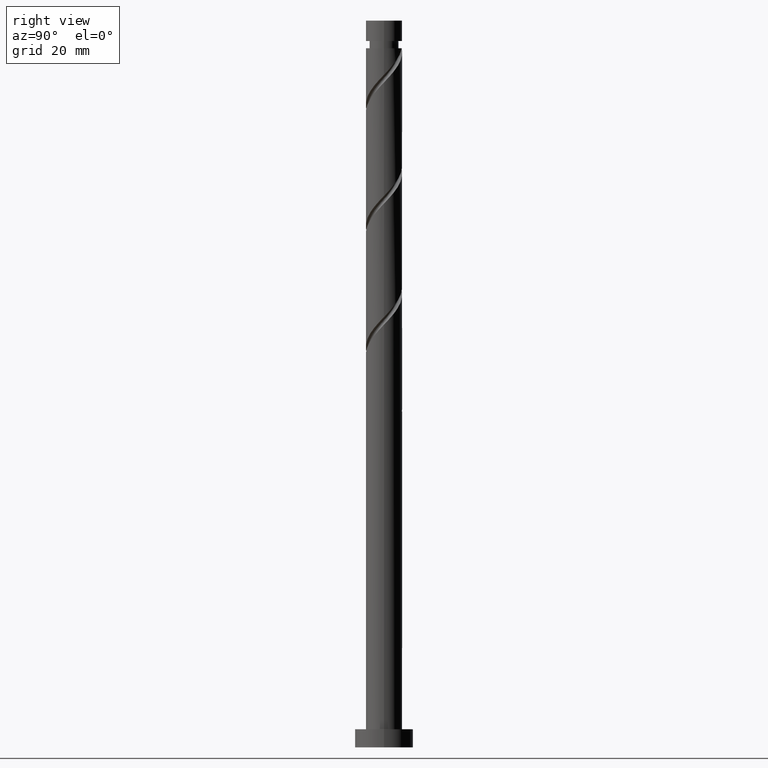
[diagram: clean part render]
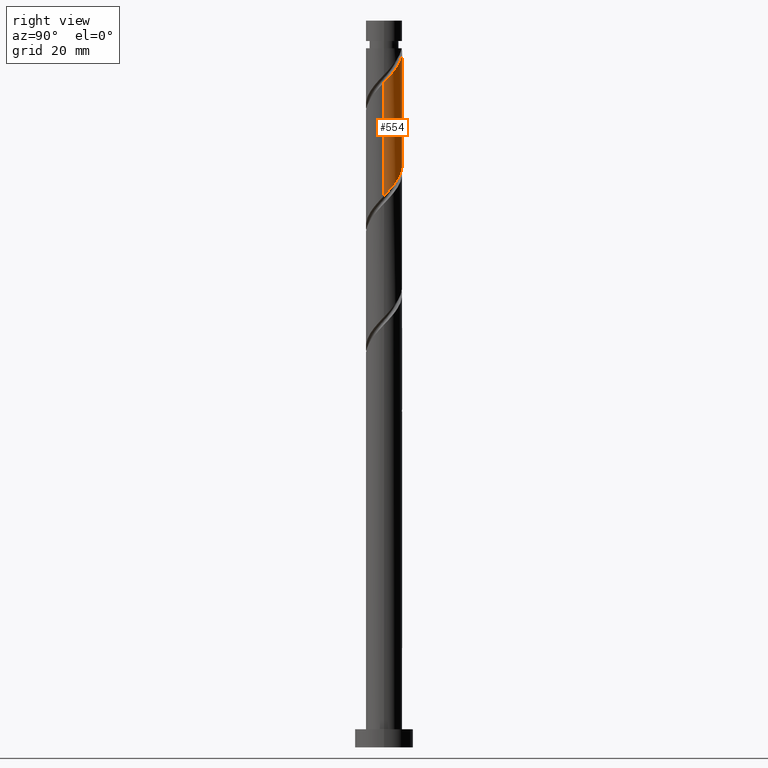
[diagram: same view with one face highlighted and labeled with its STEP entity id]
A machine part, right view. The second image highlights one B-rep face of the part: STEP entity #554.
In plain terms, the highlighted cylindrical surface (edge-blend (fillet) strip) has radius 5 mm, axis along (-0, -0, -1).
Its self-contained STEP definition (entity closure, byte-faithful):
#1 = LINE ( 'NONE', #513, #1695 ) ;
#11 = CARTESIAN_POINT ( 'NONE',  ( 3.311684396980707046, 3.746030759990436554, 156.2760956125170821 ) ) ;
#29 = CARTESIAN_POINT ( 'NONE',  ( -4.475514850455493132, 2.229297383336807936, 165.9983178347392823 ) ) ;
#39 = CARTESIAN_POINT ( 'NONE',  ( 4.900000000000007461, 0.9949874371066216305, 184.0538733902948536 ) ) ;
#46 = CARTESIAN_POINT ( 'NONE',  ( 0.3071292586679011949, 4.990558247177381723, 190.9983178347393107 ) ) ;
#54 = CARTESIAN_POINT ( 'NONE',  ( 0.9641487162641793063, 4.950123913191591285, 190.3038733902949105 ) ) ;
#69 = CARTESIAN_POINT ( 'NONE',  ( -4.999999999999989342, 0.000000000000000000, 192.3872067236282248 ) ) ;
#126 = DIRECTION ( 'NONE',  ( -0.000000000000000000, -0.000000000000000000, -1.000000000000000000 ) ) ;
#243 = VECTOR ( 'NONE', #1259, 1000.000000000000000 ) ;
#251 = CARTESIAN_POINT ( 'NONE',  ( -0.3071292586678955883, 4.990558247177374618, 160.4427622791837678 ) ) ;
#273 = CARTESIAN_POINT ( 'NONE',  ( -3.310039237906720277, 3.804858702572659013, 163.9149845014060531 ) ) ;
#280 = CARTESIAN_POINT ( 'NONE',  ( -4.769007418836832102, 1.640084675284862126, 166.6927622791838246 ) ) ;
#298 = FACE_OUTER_BOUND ( 'NONE', #816, .T. ) ;
#304 = CARTESIAN_POINT ( 'NONE',  ( 0.000000000000000000, 0.000000000000000000, 200.0000000000000000 ) ) ;
#374 = VERTEX_POINT ( 'NONE', #1246 ) ;
#389 = CARTESIAN_POINT ( 'NONE',  ( 3.804858702572659901, 3.310039237906718057, 155.5816511680726819 ) ) ;
#396 = CARTESIAN_POINT ( 'NONE',  ( -5.000000000000000888, 0.5025189076296063817, 167.9173470096489780 ) ) ;
#415 = CARTESIAN_POINT ( 'NONE',  ( -1.588315603019293532, 4.741018197097059961, 161.8316511680726251 ) ) ;
#432 = EDGE_CURVE ( 'NONE', #556, #461, #1740, .T. ) ;
#435 = DIRECTION ( 'NONE',  ( -1.000000000000000000, 0.000000000000000000, 0.000000000000000000 ) ) ;
#437 = AXIS2_PLACEMENT_3D ( 'NONE', #924, #1486, #794 ) ;
#450 = CYLINDRICAL_SURFACE ( 'NONE', #1102, 5.000000000000000888 ) ;
#461 = VERTEX_POINT ( 'NONE', #1416 ) ;
#513 = CARTESIAN_POINT ( 'NONE',  ( 5.000000000000000888, 6.123233995736767268E-16, 200.0000000000000000 ) ) ;
#544 = CARTESIAN_POINT ( 'NONE',  ( 2.818510091388756411, 4.182022282074155939, 156.9705400569615108 ) ) ;
#554 = ADVANCED_FACE ( 'NONE', ( #298 ), #450, .T. ) ;
#556 = VERTEX_POINT ( 'NONE', #69 ) ;
#575 = EDGE_CURVE ( 'NONE', #374, #461, #789, .T. ) ;
#584 = CARTESIAN_POINT ( 'NONE',  ( -0.3498901989283909053, 5.030992581163178379, 191.6927622791838246 ) ) ;
#656 = CARTESIAN_POINT ( 'NONE',  ( -2.761260863840567126, 4.168385591787600042, 163.2205400569615392 ) ) ;
#669 = ORIENTED_EDGE ( 'NONE', *, *, #575, .F. ) ;
#674 = CARTESIAN_POINT ( 'NONE',  ( -5.000000000000000888, -2.332790373204751885E-15, 168.4507733788382495 ) ) ;
#683 = CARTESIAN_POINT ( 'NONE',  ( 2.229297383336811045, 4.475514850455492244, 157.6649845014059679 ) ) ;
#713 = CARTESIAN_POINT ( 'NONE',  ( 5.000000000000008882, 0.5025189076296042723, 183.5237331042741005 ) ) ;
#779 = ORIENTED_EDGE ( 'NONE', *, *, #1011, .F. ) ;
#787 = CARTESIAN_POINT ( 'NONE',  ( 4.168385591787600042, 2.761260863840565793, 154.8872067236282248 ) ) ;
#789 =( BOUNDED_CURVE ( )  B_SPLINE_CURVE ( 2, ( #985, #713, #39, #1116, #1540, #1666, #1556, #1148, #842, #866, #1271, #54, #46, #584, #1699 ),
 .UNSPECIFIED., .F., .T. ) 
 B_SPLINE_CURVE_WITH_KNOTS ( ( 3, 2, 2, 2, 2, 2, 2, 3 ),
 ( 0.6795317669814462391, 0.6875000000000000000, 0.6979166666666668517, 0.7083333333333333703, 0.7187500000000001110, 0.7291666666666668517, 0.7395833333333334814, 0.7500000000000002220 ),
 .UNSPECIFIED. ) 
 CURVE ( )  GEOMETRIC_REPRESENTATION_ITEM ( )  RATIONAL_B_SPLINE_CURVE ( ( 0.9062941362546439450, 0.9031415850403482493, 0.9090909090909238266, 0.9013135103398419723, 0.9090909090909238266, 0.9013135103398419723, 0.9090909090909238266, 0.9013135103398419723, 0.9090909090909238266, 0.9013135103398419723, 0.9090909090909238266, 0.9013135103398419723, 0.9090909090909238266, 0.9013135103398417503, 0.9090909090909240486 ) ) 
 REPRESENTATION_ITEM ( '' )  );
#794 = DIRECTION ( 'NONE',  ( -1.000000000000000000, 0.000000000000000000, 0.000000000000000000 ) ) ;
#801 = CARTESIAN_POINT ( 'NONE',  ( 4.990558247177374618, 0.3071292586678932013, 152.1094289458504250 ) ) ;
#812 = CARTESIAN_POINT ( 'NONE',  ( -0.9641487162641734221, 4.950123913191581515, 161.1372067236282533 ) ) ;
#816 = EDGE_LOOP ( 'NONE', ( #669, #1043, #779, #869, #965 ) ) ;
#820 = CARTESIAN_POINT ( 'NONE',  ( -4.182022282074157715, 2.818510091388754191, 165.3038733902949389 ) ) ;
#826 = CARTESIAN_POINT ( 'NONE',  ( 5.000000000000000888, 6.415173526313069063E-15, 151.7841067121716208 ) ) ;
#842 = CARTESIAN_POINT ( 'NONE',  ( 2.761260863840572899, 4.168385591787602706, 188.2205400569614824 ) ) ;
#866 = CARTESIAN_POINT ( 'NONE',  ( 2.212482489774421079, 4.531912481002548176, 188.9149845014059963 ) ) ;
#869 = ORIENTED_EDGE ( 'NONE', *, *, #1151, .F. ) ;
#924 = CARTESIAN_POINT ( 'NONE',  ( 0.000000000000000000, 0.000000000000000000, 192.3872067236282248 ) ) ;
#942 = CARTESIAN_POINT ( 'NONE',  ( -3.746030759990437886, 3.311684396980705714, 164.6094289458503965 ) ) ;
#965 = ORIENTED_EDGE ( 'NONE', *, *, #432, .T. ) ;
#985 = CARTESIAN_POINT ( 'NONE',  ( 5.000000000000007994, -1.106580048827886720E-15, 182.9903067350848289 ) ) ;
#1000 = DIRECTION ( 'NONE',  ( -0.000000000000000000, -0.000000000000000000, -1.000000000000000000 ) ) ;
#1011 = EDGE_CURVE ( 'NONE', #1446, #1597, #1709, .T. ) ;
#1043 = ORIENTED_EDGE ( 'NONE', *, *, #1072, .T. ) ;
#1072 = EDGE_CURVE ( 'NONE', #374, #1597, #1, .T. ) ;
#1102 = AXIS2_PLACEMENT_3D ( 'NONE', #304, #1000, #435 ) ;
#1116 = CARTESIAN_POINT ( 'NONE',  ( 4.769007418836841872, 1.640084675284862348, 184.7483178347393959 ) ) ;
#1135 = LINE ( 'NONE', #1521, #243 ) ;
#1148 = CARTESIAN_POINT ( 'NONE',  ( 3.310039237906730047, 3.804858702572660789, 187.5260956125171106 ) ) ;
#1151 = EDGE_CURVE ( 'NONE', #556, #1446, #1135, .T. ) ;
#1215 = CARTESIAN_POINT ( 'NONE',  ( 0.3498901989283822456, 5.030992581163167721, 159.7483178347393391 ) ) ;
#1234 = CARTESIAN_POINT ( 'NONE',  ( 4.999999999999999112, 0.1537097582883752145, 151.9472704001997840 ) ) ;
#1244 = CARTESIAN_POINT ( 'NONE',  ( -4.899999999999997691, 0.9949874371066218526, 167.3872067236281680 ) ) ;
#1246 = CARTESIAN_POINT ( 'NONE',  ( 5.000000000000007994, -1.106580048827886918E-15, 182.9903067350848289 ) ) ;
#1259 = DIRECTION ( 'NONE',  ( -0.000000000000000000, -0.000000000000000000, -1.000000000000000000 ) ) ;
#1271 = CARTESIAN_POINT ( 'NONE',  ( 1.588315603019299527, 4.741018197097066178, 189.6094289458503965 ) ) ;
#1336 = CARTESIAN_POINT ( 'NONE',  ( 4.741018197097059961, 1.588315603019290201, 153.4983178347393391 ) ) ;
#1346 = CARTESIAN_POINT ( 'NONE',  ( 4.950123913191582403, 0.9641487162641702025, 152.8038733902948820 ) ) ;
#1368 = CARTESIAN_POINT ( 'NONE',  ( 1.640084675284866123, 4.769007418836829437, 158.3594289458504534 ) ) ;
#1376 = CARTESIAN_POINT ( 'NONE',  ( 5.000000000000000888, 6.415173526313069063E-15, 151.7841067121716208 ) ) ;
#1416 = CARTESIAN_POINT ( 'NONE',  ( -0.9949874371065590140, 4.900000000000010125, 192.3872067236281964 ) ) ;
#1446 = VERTEX_POINT ( 'NONE', #1628 ) ;
#1480 = CARTESIAN_POINT ( 'NONE',  ( -2.212482489774413530, 4.531912481002540183, 162.5260956125171106 ) ) ;
#1486 = DIRECTION ( 'NONE',  ( -0.000000000000000000, -0.000000000000000000, -1.000000000000000000 ) ) ;
#1503 = CARTESIAN_POINT ( 'NONE',  ( 4.531912481002542847, 2.212482489774410421, 154.1927622791837678 ) ) ;
#1513 = CARTESIAN_POINT ( 'NONE',  ( 0.9949874371066229628, 4.899999999999997691, 159.0538733902948820 ) ) ;
#1521 = CARTESIAN_POINT ( 'NONE',  ( -5.000000000000000888, 0.000000000000000000, 200.0000000000000000 ) ) ;
#1540 = CARTESIAN_POINT ( 'NONE',  ( 4.475514850455502902, 2.229297383336807048, 185.4427622791837393 ) ) ;
#1556 = CARTESIAN_POINT ( 'NONE',  ( 3.746030759990446768, 3.311684396980707046, 186.8316511680726251 ) ) ;
#1597 = VERTEX_POINT ( 'NONE', #826 ) ;
#1628 = CARTESIAN_POINT ( 'NONE',  ( -5.000000000000000888, -2.332790373204751885E-15, 168.4507733788382779 ) ) ;
#1666 = CARTESIAN_POINT ( 'NONE',  ( 4.182022282074168373, 2.818510091388755079, 186.1372067236282817 ) ) ;
#1695 = VECTOR ( 'NONE', #126, 1000.000000000000000 ) ;
#1699 = CARTESIAN_POINT ( 'NONE',  ( -0.9949874371065590140, 4.900000000000010125, 192.3872067236281964 ) ) ;
#1709 =( BOUNDED_CURVE ( )  B_SPLINE_CURVE ( 2, ( #674, #396, #1244, #280, #29, #820, #942, #273, #656, #1480, #415, #812, #251, #1215, #1513, #1368, #683, #544, #11, #389, #787, #1503, #1336, #1346, #801, #1234, #1376 ),
 .UNSPECIFIED., .F., .T. ) 
 B_SPLINE_CURVE_WITH_KNOTS ( ( 3, 2, 2, 2, 2, 2, 2, 2, 2, 2, 2, 2, 2, 3 ),
 ( 0.4295317669814462391, 0.4375000000000000000, 0.4479166666666666852, 0.4583333333333333148, 0.4687500000000000000, 0.4791666666666666852, 0.4895833333333333148, 0.5000000000000000000, 0.5104166666666666297, 0.5208333333333333703, 0.5312500000000000000, 0.5416666666666666297, 0.5520833333333333703, 0.5545317669814461281 ),
 .UNSPECIFIED. ) 
 CURVE ( )  GEOMETRIC_REPRESENTATION_ITEM ( )  RATIONAL_B_SPLINE_CURVE ( ( 0.9062941362546372837, 0.9031415850403414769, 0.9090909090909168322, 0.9013135103398353110, 0.9090909090909168322, 0.9013135103398353110, 0.9090909090909168322, 0.9013135103398353110, 0.9090909090909168322, 0.9013135103398353110, 0.9090909090909168322, 0.9013135103398353110, 0.9090909090909168322, 0.9013135103398353110, 0.9090909090909168322, 0.9013135103398353110, 0.9090909090909168322, 0.9013135103398353110, 0.9090909090909168322, 0.9013135103398353110, 0.9090909090909168322, 0.9013135103398353110, 0.9090909090909168322, 0.9013135103398353110, 0.9090909090909168322, 0.9072628343904107773, 0.9062941362546373947 ) ) 
 REPRESENTATION_ITEM ( '' )  );
#1740 = CIRCLE ( 'NONE', #437, 4.999999999999989342 ) ;